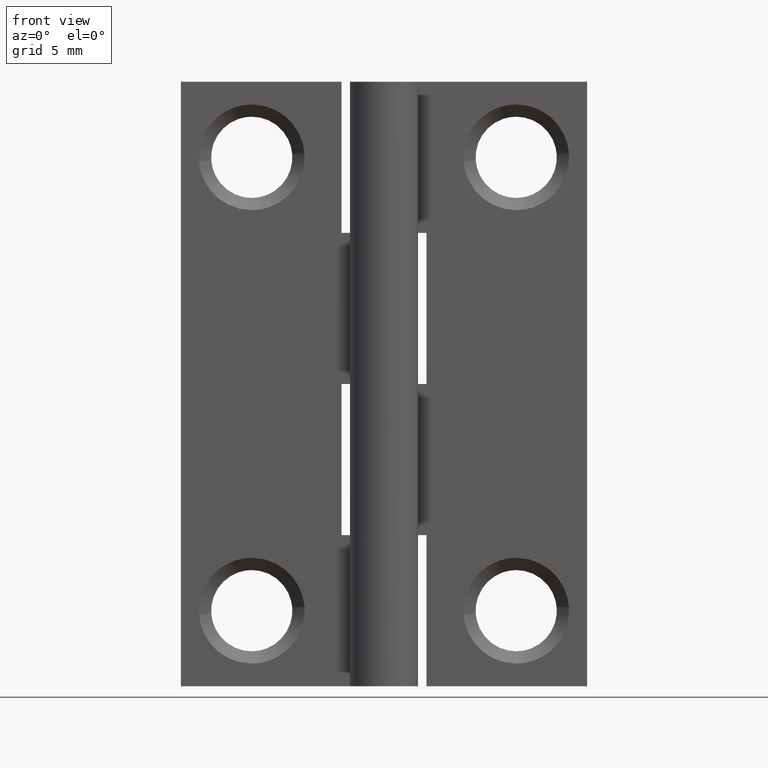
[diagram: clean part render]
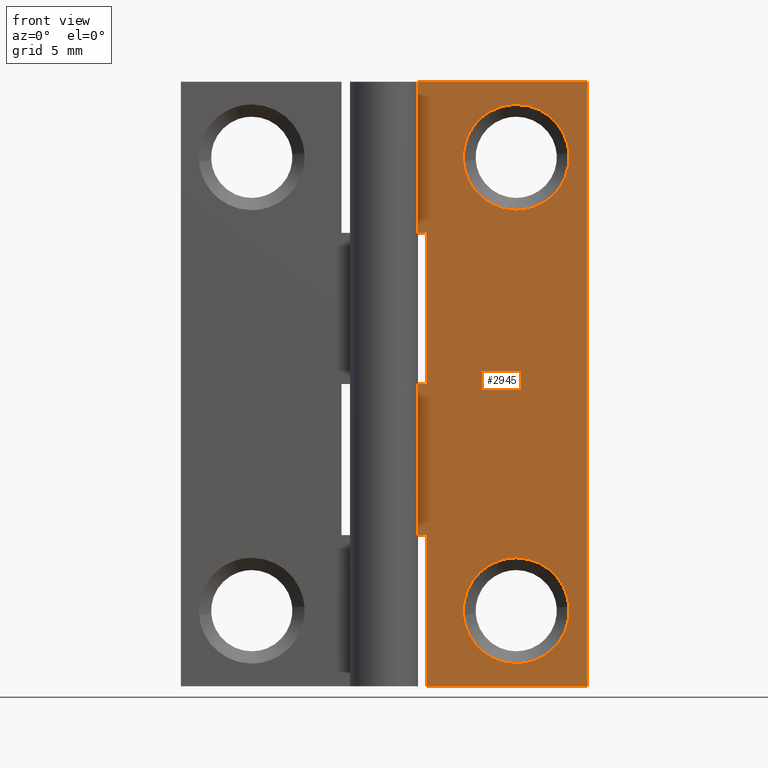
[diagram: same view with one face highlighted and labeled with its STEP entity id]
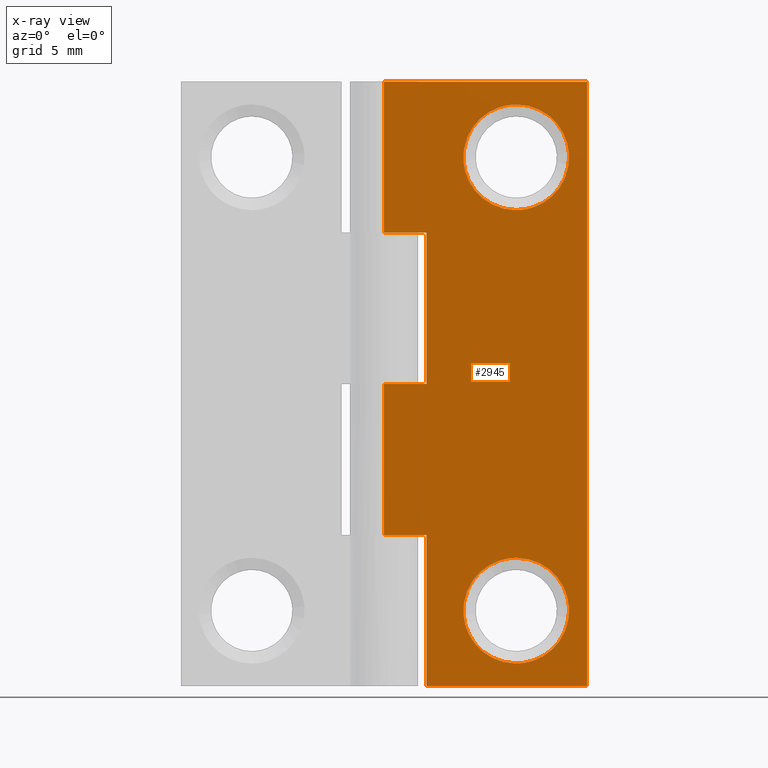
[diagram: x-ray of the same camera — body ghosted, the highlighted face saturated]
A machine part, front view. The second image highlights one B-rep face of the part: STEP entity #2945.
The next image is the same camera in x-ray: the body ghosted, the highlighted face saturated — about 0% of this face is hidden behind the body in this view.
In plain terms, the highlighted face is a freeform B-spline surface patch.
Its self-contained STEP definition (entity closure, byte-faithful):
#1876=CARTESIAN_POINT('',(9.791368486916333,1.000000059603890,28.219685464302589));
#1877=VERTEX_POINT('',#1876);
#1883=CARTESIAN_POINT('',(7.0,1.000000059604644,30.799999952316291));
#1884=VERTEX_POINT('',#1883);
#1885=CARTESIAN_POINT('',(7.0,1.000000059604644,30.799999952316291));
#1886=CARTESIAN_POINT('',(9.588293332553841,1.000000059604644,30.799999952316291));
#1887=CARTESIAN_POINT('',(9.791368486916333,1.000000059603890,28.219685464302593));
#1895=(BOUNDED_CURVE()B_SPLINE_CURVE(2,(#1885,#1886,#1887),.UNSPECIFIED.,.F.,.U.)B_SPLINE_CURVE_WITH_KNOTS((3,3),(0.0,0.236331300632056),.UNSPECIFIED.)CURVE()GEOMETRIC_REPRESENTATION_ITEM()RATIONAL_B_SPLINE_CURVE((1.0,0.723120658606029,0.969723356170332))REPRESENTATION_ITEM(''));
#1896=EDGE_CURVE('',#1884,#1877,#1895,.T.);
#1898=CARTESIAN_POINT('',(4.208631513083667,1.000000059603889,27.780314535697411));
#1899=VERTEX_POINT('',#1898);
#1900=CARTESIAN_POINT('',(4.208631513083667,1.000000059603889,27.780314535697414));
#1901=CARTESIAN_POINT('',(4.200000047683715,1.000000059604644,27.889987702246213));
#1902=CARTESIAN_POINT('',(4.200000047683715,1.000000059604644,28.0));
#1903=CARTESIAN_POINT('',(4.200000047683716,1.000000059604644,30.799999952316295));
#1904=CARTESIAN_POINT('',(7.0,1.000000059604644,30.799999952316291));
#1912=(BOUNDED_CURVE()B_SPLINE_CURVE(2,(#1900,#1901,#1902,#1903,#1904),.UNSPECIFIED.,.F.,.U.)B_SPLINE_CURVE_WITH_KNOTS((3,2,3),(0.736331300632057,0.750000000000000,1.0),.UNSPECIFIED.)CURVE()GEOMETRIC_REPRESENTATION_ITEM()RATIONAL_B_SPLINE_CURVE((0.969723356170333,0.983986122580519,1.0,0.707106781186547,1.0))REPRESENTATION_ITEM(''));
#1913=EDGE_CURVE('',#1899,#1884,#1912,.T.);
#1950=CARTESIAN_POINT('',(7.0,1.000000059604644,25.200000047683719));
#1951=VERTEX_POINT('',#1950);
#1952=CARTESIAN_POINT('',(7.0,1.000000059604644,25.200000047683719));
#1953=CARTESIAN_POINT('',(4.411706667446135,1.000000059604644,25.200000047683712));
#1954=CARTESIAN_POINT('',(4.208631513083667,1.000000059603889,27.780314535697411));
#1962=(BOUNDED_CURVE()B_SPLINE_CURVE(2,(#1952,#1953,#1954),.UNSPECIFIED.,.F.,.U.)B_SPLINE_CURVE_WITH_KNOTS((3,3),(0.500000000000000,0.736331300632058),.UNSPECIFIED.)CURVE()GEOMETRIC_REPRESENTATION_ITEM()RATIONAL_B_SPLINE_CURVE((1.0,0.723120658606027,0.969723356170336))REPRESENTATION_ITEM(''));
#1963=EDGE_CURVE('',#1951,#1899,#1962,.T.);
#1965=CARTESIAN_POINT('',(9.791368486916333,1.000000059603890,28.219685464302589));
#1966=CARTESIAN_POINT('',(9.799999952316284,1.000000059604644,28.110012297753784));
#1967=CARTESIAN_POINT('',(9.799999952316284,1.000000059604644,28.0));
#1968=CARTESIAN_POINT('',(9.799999952316284,1.000000059604644,25.200000047683719));
#1969=CARTESIAN_POINT('',(7.0,1.000000059604644,25.200000047683719));
#1977=(BOUNDED_CURVE()B_SPLINE_CURVE(2,(#1965,#1966,#1967,#1968,#1969),.UNSPECIFIED.,.F.,.U.)B_SPLINE_CURVE_WITH_KNOTS((3,2,3),(0.236331300632056,0.250000000000000,0.500000000000000),.UNSPECIFIED.)CURVE()GEOMETRIC_REPRESENTATION_ITEM()RATIONAL_B_SPLINE_CURVE((0.969723356170332,0.983986122580518,1.0,0.707106781186547,1.0))REPRESENTATION_ITEM(''));
#1978=EDGE_CURVE('',#1877,#1951,#1977,.T.);
#2204=CARTESIAN_POINT('',(9.791368486916332,1.000000059603889,4.219685464302588));
#2205=VERTEX_POINT('',#2204);
#2211=CARTESIAN_POINT('',(7.0,1.000000059604644,6.799999952316286));
#2212=VERTEX_POINT('',#2211);
#2213=CARTESIAN_POINT('',(7.0,1.000000059604644,6.799999952316286));
#2214=CARTESIAN_POINT('',(9.588293332553850,1.000000059604644,6.799999952316286));
#2215=CARTESIAN_POINT('',(9.791368486916332,1.000000059603889,4.219685464302588));
#2223=(BOUNDED_CURVE()B_SPLINE_CURVE(2,(#2213,#2214,#2215),.UNSPECIFIED.,.F.,.U.)B_SPLINE_CURVE_WITH_KNOTS((3,3),(0.0,0.236331300632057),.UNSPECIFIED.)CURVE()GEOMETRIC_REPRESENTATION_ITEM()RATIONAL_B_SPLINE_CURVE((1.0,0.723120658606029,0.969723356170333))REPRESENTATION_ITEM(''));
#2224=EDGE_CURVE('',#2212,#2205,#2223,.T.);
#2226=CARTESIAN_POINT('',(4.208631513083668,1.000000059603889,3.780314535697411));
#2227=VERTEX_POINT('',#2226);
#2228=CARTESIAN_POINT('',(4.208631513083668,1.000000059603889,3.780314535697410));
#2229=CARTESIAN_POINT('',(4.200000047683715,1.000000059604644,3.889987702246212));
#2230=CARTESIAN_POINT('',(4.200000047683715,1.000000059604644,4.0));
#2231=CARTESIAN_POINT('',(4.200000047683716,1.000000059604644,6.799999952316285));
#2232=CARTESIAN_POINT('',(7.0,1.000000059604644,6.799999952316286));
#2240=(BOUNDED_CURVE()B_SPLINE_CURVE(2,(#2228,#2229,#2230,#2231,#2232),.UNSPECIFIED.,.F.,.U.)B_SPLINE_CURVE_WITH_KNOTS((3,2,3),(0.736331300632056,0.750000000000000,1.0),.UNSPECIFIED.)CURVE()GEOMETRIC_REPRESENTATION_ITEM()RATIONAL_B_SPLINE_CURVE((0.969723356170333,0.983986122580518,1.0,0.707106781186547,1.0))REPRESENTATION_ITEM(''));
#2241=EDGE_CURVE('',#2227,#2212,#2240,.T.);
#2278=CARTESIAN_POINT('',(7.0,1.000000059604644,1.200000047683715));
#2279=VERTEX_POINT('',#2278);
#2280=CARTESIAN_POINT('',(7.0,1.000000059604644,1.200000047683715));
#2281=CARTESIAN_POINT('',(4.411706667446166,1.000000059604644,1.200000047683715));
#2282=CARTESIAN_POINT('',(4.208631513083668,1.000000059603889,3.780314535697410));
#2290=(BOUNDED_CURVE()B_SPLINE_CURVE(2,(#2280,#2281,#2282),.UNSPECIFIED.,.F.,.U.)B_SPLINE_CURVE_WITH_KNOTS((3,3),(0.500000000000000,0.736331300632056),.UNSPECIFIED.)CURVE()GEOMETRIC_REPRESENTATION_ITEM()RATIONAL_B_SPLINE_CURVE((1.0,0.723120658606030,0.969723356170331))REPRESENTATION_ITEM(''));
#2291=EDGE_CURVE('',#2279,#2227,#2290,.T.);
#2293=CARTESIAN_POINT('',(9.791368486916332,1.000000059603889,4.219685464302588));
#2294=CARTESIAN_POINT('',(9.799999952316282,1.000000059604644,4.110012297753787));
#2295=CARTESIAN_POINT('',(9.799999952316284,1.000000059604644,4.0));
#2296=CARTESIAN_POINT('',(9.799999952316284,1.000000059604644,1.200000047683715));
#2297=CARTESIAN_POINT('',(7.0,1.000000059604644,1.200000047683715));
#2305=(BOUNDED_CURVE()B_SPLINE_CURVE(2,(#2293,#2294,#2295,#2296,#2297),.UNSPECIFIED.,.F.,.U.)B_SPLINE_CURVE_WITH_KNOTS((3,2,3),(0.236331300632057,0.250000000000000,0.500000000000000),.UNSPECIFIED.)CURVE()GEOMETRIC_REPRESENTATION_ITEM()RATIONAL_B_SPLINE_CURVE((0.969723356170333,0.983986122580519,1.0,0.707106781186547,1.0))REPRESENTATION_ITEM(''));
#2306=EDGE_CURVE('',#2205,#2279,#2305,.T.);
#2347=CARTESIAN_POINT('',(0.0,1.0,16.0));
#2348=VERTEX_POINT('',#2347);
#2368=CARTESIAN_POINT('',(2.250000000000000,1.0,16.0));
#2369=VERTEX_POINT('',#2368);
#2370=CARTESIAN_POINT('',(0.0,1.0,16.0));
#2371=CARTESIAN_POINT('',(2.250000000000000,1.0,16.0));
#2372=QUASI_UNIFORM_CURVE('',1,(#2370,#2371),.UNSPECIFIED.,.F.,.U.);
#2373=EDGE_CURVE('',#2348,#2369,#2372,.T.);
#2439=CARTESIAN_POINT('',(2.250000000000000,1.0,24.0));
#2440=VERTEX_POINT('',#2439);
#2446=CARTESIAN_POINT('',(0.0,1.0,24.0));
#2447=VERTEX_POINT('',#2446);
#2448=CARTESIAN_POINT('',(2.250000000000000,1.0,24.0));
#2449=CARTESIAN_POINT('',(0.0,1.0,24.0));
#2450=QUASI_UNIFORM_CURVE('',1,(#2448,#2449),.UNSPECIFIED.,.F.,.U.);
#2451=EDGE_CURVE('',#2440,#2447,#2450,.T.);
#2487=CARTESIAN_POINT('',(2.250000000000000,1.0,16.0));
#2488=CARTESIAN_POINT('',(2.250000000000000,1.0,24.0));
#2489=QUASI_UNIFORM_CURVE('',1,(#2487,#2488),.UNSPECIFIED.,.F.,.U.);
#2490=EDGE_CURVE('',#2369,#2440,#2489,.T.);
#2507=CARTESIAN_POINT('',(2.250000000000000,1.0,0.0));
#2508=VERTEX_POINT('',#2507);
#2509=CARTESIAN_POINT('',(2.250000000000000,1.0,7.999999999999900));
#2510=VERTEX_POINT('',#2509);
#2511=CARTESIAN_POINT('',(2.250000000000000,1.0,0.0));
#2512=CARTESIAN_POINT('',(2.250000000000000,1.0,7.999999999999900));
#2513=QUASI_UNIFORM_CURVE('',1,(#2511,#2512),.UNSPECIFIED.,.F.,.U.);
#2514=EDGE_CURVE('',#2508,#2510,#2513,.T.);
#2579=CARTESIAN_POINT('',(0.0,1.0,7.999999999999900));
#2580=VERTEX_POINT('',#2579);
#2581=CARTESIAN_POINT('',(2.250000000000000,1.0,7.999999999999900));
#2582=CARTESIAN_POINT('',(0.0,1.0,7.999999999999900));
#2583=QUASI_UNIFORM_CURVE('',1,(#2581,#2582),.UNSPECIFIED.,.F.,.U.);
#2584=EDGE_CURVE('',#2510,#2580,#2583,.T.);
#2650=CARTESIAN_POINT('',(0.0,0.999999999999986,32.0));
#2651=VERTEX_POINT('',#2650);
#2671=CARTESIAN_POINT('',(10.750000000000000,0.999999999999986,32.0));
#2672=VERTEX_POINT('',#2671);
#2673=CARTESIAN_POINT('',(10.750000000000000,0.999999999999986,32.0));
#2674=CARTESIAN_POINT('',(0.0,0.999999999999986,32.0));
#2675=QUASI_UNIFORM_CURVE('',1,(#2673,#2674),.UNSPECIFIED.,.F.,.U.);
#2676=EDGE_CURVE('',#2672,#2651,#2675,.T.);
#2699=CARTESIAN_POINT('',(10.750000000000000,0.999999999999986,0.0));
#2700=VERTEX_POINT('',#2699);
#2701=CARTESIAN_POINT('',(10.750000000000000,0.999999999999986,0.0));
#2702=CARTESIAN_POINT('',(10.750000000000000,0.999999999999986,32.0));
#2703=QUASI_UNIFORM_CURVE('',1,(#2701,#2702),.UNSPECIFIED.,.F.,.U.);
#2704=EDGE_CURVE('',#2700,#2672,#2703,.T.);
#2726=CARTESIAN_POINT('',(10.750000000000000,0.999999999999986,0.0));
#2727=CARTESIAN_POINT('',(2.250000000000000,1.0,0.0));
#2728=QUASI_UNIFORM_CURVE('',1,(#2726,#2727),.UNSPECIFIED.,.F.,.U.);
#2729=EDGE_CURVE('',#2700,#2508,#2728,.T.);
#2803=CARTESIAN_POINT('',(0.0,1.0,7.999999999999900));
#2804=CARTESIAN_POINT('',(0.0,1.0,16.0));
#2805=QUASI_UNIFORM_CURVE('',1,(#2803,#2804),.UNSPECIFIED.,.F.,.U.);
#2806=EDGE_CURVE('',#2580,#2348,#2805,.T.);
#2838=CARTESIAN_POINT('',(0.0,1.0,24.0));
#2839=CARTESIAN_POINT('',(0.0,0.999999999999986,32.0));
#2840=QUASI_UNIFORM_CURVE('',1,(#2838,#2839),.UNSPECIFIED.,.F.,.U.);
#2841=EDGE_CURVE('',#2447,#2651,#2840,.T.);
#2916=CARTESIAN_POINT('',(-0.536962479164415,0.999999999999986,-1.598399937977790));
#2917=CARTESIAN_POINT('',(-0.536962479164415,0.999999999999986,33.598400796284679));
#2918=CARTESIAN_POINT('',(11.286962767501880,0.999999999999986,-1.598399937977790));
#2919=CARTESIAN_POINT('',(11.286962767501880,0.999999999999986,33.598400796284679));
#2920=B_SPLINE_SURFACE_WITH_KNOTS('',1,1,((#2916,#2918),(#2917,#2919)),.UNSPECIFIED.,.F.,.F.,.U.,(2,2),(2,2),(0.0,35.196800734262467),(0.0,11.823925246666301),.UNSPECIFIED.);
#2921=ORIENTED_EDGE('',*,*,#2451,.F.);
#2922=ORIENTED_EDGE('',*,*,#2490,.F.);
#2923=ORIENTED_EDGE('',*,*,#2373,.F.);
#2924=ORIENTED_EDGE('',*,*,#2806,.F.);
#2925=ORIENTED_EDGE('',*,*,#2584,.F.);
#2926=ORIENTED_EDGE('',*,*,#2514,.F.);
#2927=ORIENTED_EDGE('',*,*,#2729,.F.);
#2928=ORIENTED_EDGE('',*,*,#2704,.T.);
#2929=ORIENTED_EDGE('',*,*,#2676,.T.);
#2930=ORIENTED_EDGE('',*,*,#2841,.F.);
#2931=EDGE_LOOP('',(#2921,#2922,#2923,#2924,#2925,#2926,#2927,#2928,#2929,#2930));
#2932=FACE_OUTER_BOUND('',#2931,.T.);
#2933=ORIENTED_EDGE('',*,*,#2291,.T.);
#2934=ORIENTED_EDGE('',*,*,#2241,.T.);
#2935=ORIENTED_EDGE('',*,*,#2224,.T.);
#2936=ORIENTED_EDGE('',*,*,#2306,.T.);
#2937=EDGE_LOOP('',(#2933,#2934,#2935,#2936));
#2938=FACE_BOUND('',#2937,.T.);
#2939=ORIENTED_EDGE('',*,*,#1963,.T.);
#2940=ORIENTED_EDGE('',*,*,#1913,.T.);
#2941=ORIENTED_EDGE('',*,*,#1896,.T.);
#2942=ORIENTED_EDGE('',*,*,#1978,.T.);
#2943=EDGE_LOOP('',(#2939,#2940,#2941,#2942));
#2944=FACE_BOUND('',#2943,.T.);
#2945=ADVANCED_FACE('',(#2932,#2938,#2944),#2920,.F.);